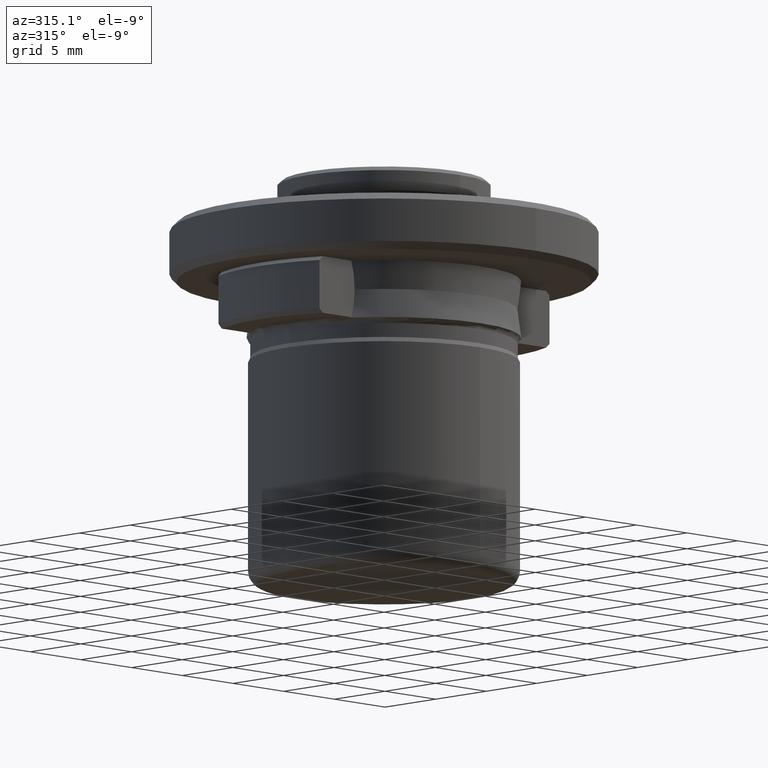
[diagram: clean part render]
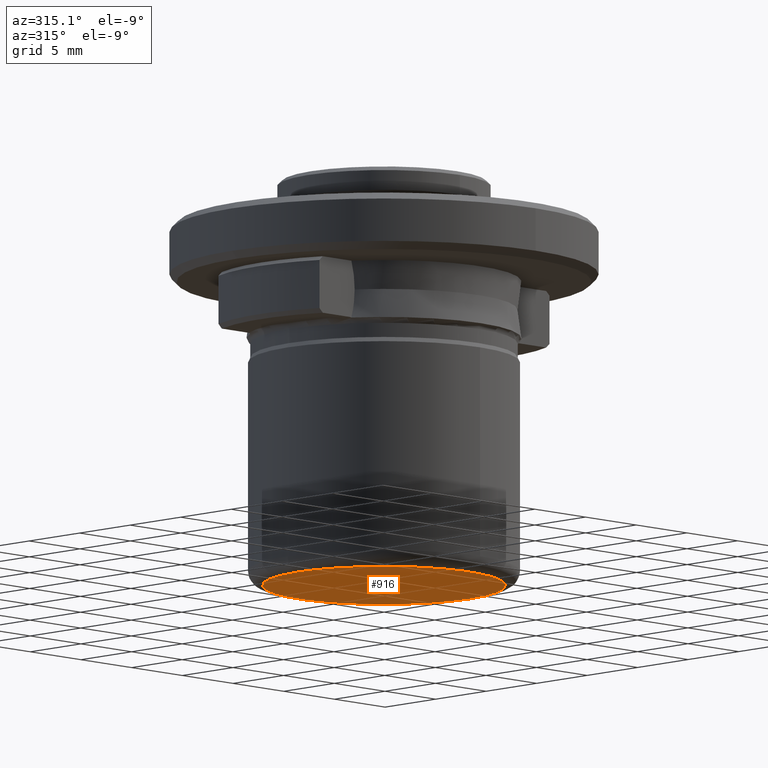
[diagram: same view with one face highlighted and labeled with its STEP entity id]
A machine part, auxiliary view. The second image highlights one B-rep face of the part: STEP entity #916.
In plain terms, the highlighted planar face has unit normal (0, 0, 1).
Its self-contained STEP definition (entity closure, byte-faithful):
#136 = CIRCLE ( 'NONE', #1553, 8.500000000000000000 ) ;
#206 = AXIS2_PLACEMENT_3D ( 'NONE', #394, #1537, #561 ) ;
#394 = CARTESIAN_POINT ( 'NONE',  ( 0.0000000000000000000, 2.364620801796248300E-016, -12.75000000000000200 ) ) ;
#443 = ORIENTED_EDGE ( 'NONE', *, *, #1832, .T. ) ;
#471 = AXIS2_PLACEMENT_3D ( 'NONE', #1747, #621, #1758 ) ;
#473 = DIRECTION ( 'NONE',  ( -0.0000000000000000000, -0.0000000000000000000, -1.000000000000000000 ) ) ;
#561 = DIRECTION ( 'NONE',  ( 1.000000000000000000, 0.0000000000000000000, 0.0000000000000000000 ) ) ;
#621 = DIRECTION ( 'NONE',  ( 0.0000000000000000000, 0.0000000000000000000, 1.000000000000000000 ) ) ;
#712 = CARTESIAN_POINT ( 'NONE',  ( 8.500000000000000000, 2.364620801796248300E-016, -12.75000000000000200 ) ) ;
#846 = CIRCLE ( 'NONE', #206, 8.500000000000000000 ) ;
#916 = ADVANCED_FACE ( 'NONE', ( #1992 ), #1592, .F. ) ;
#968 = ORIENTED_EDGE ( 'NONE', *, *, #1957, .T. ) ;
#1012 = VERTEX_POINT ( 'NONE', #1704 ) ;
#1131 = DIRECTION ( 'NONE',  ( 1.000000000000000000, 0.0000000000000000000, 0.0000000000000000000 ) ) ;
#1537 = DIRECTION ( 'NONE',  ( -0.0000000000000000000, -0.0000000000000000000, -1.000000000000000000 ) ) ;
#1553 = AXIS2_PLACEMENT_3D ( 'NONE', #1935, #473, #1131 ) ;
#1592 = PLANE ( 'NONE',  #471 ) ;
#1704 = CARTESIAN_POINT ( 'NONE',  ( -8.500000000000000000, 1.338644199412242400E-015, -12.75000000000000200 ) ) ;
#1747 = CARTESIAN_POINT ( 'NONE',  ( -8.450200000000000600, -8.450200000000000600, -12.75000000000000200 ) ) ;
#1758 = DIRECTION ( 'NONE',  ( 1.000000000000000000, 0.0000000000000000000, 0.0000000000000000000 ) ) ;
#1832 = EDGE_CURVE ( 'NONE', #1012, #1893, #136, .T. ) ;
#1893 = VERTEX_POINT ( 'NONE', #712 ) ;
#1917 = EDGE_LOOP ( 'NONE', ( #968, #443 ) ) ;
#1935 = CARTESIAN_POINT ( 'NONE',  ( 0.0000000000000000000, 2.364620801796248300E-016, -12.75000000000000200 ) ) ;
#1957 = EDGE_CURVE ( 'NONE', #1893, #1012, #846, .T. ) ;
#1992 = FACE_OUTER_BOUND ( 'NONE', #1917, .T. ) ;